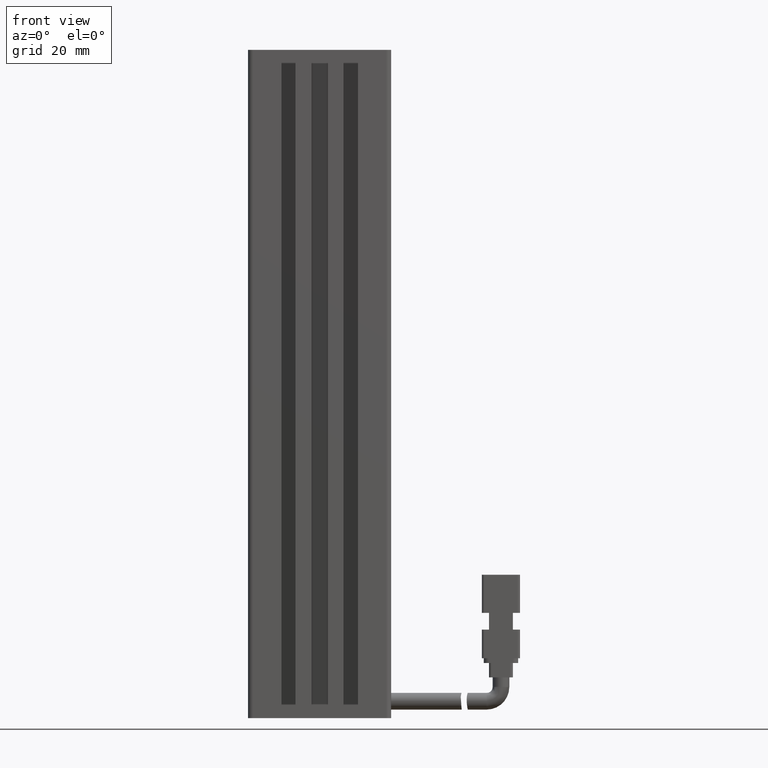
[diagram: clean part render]
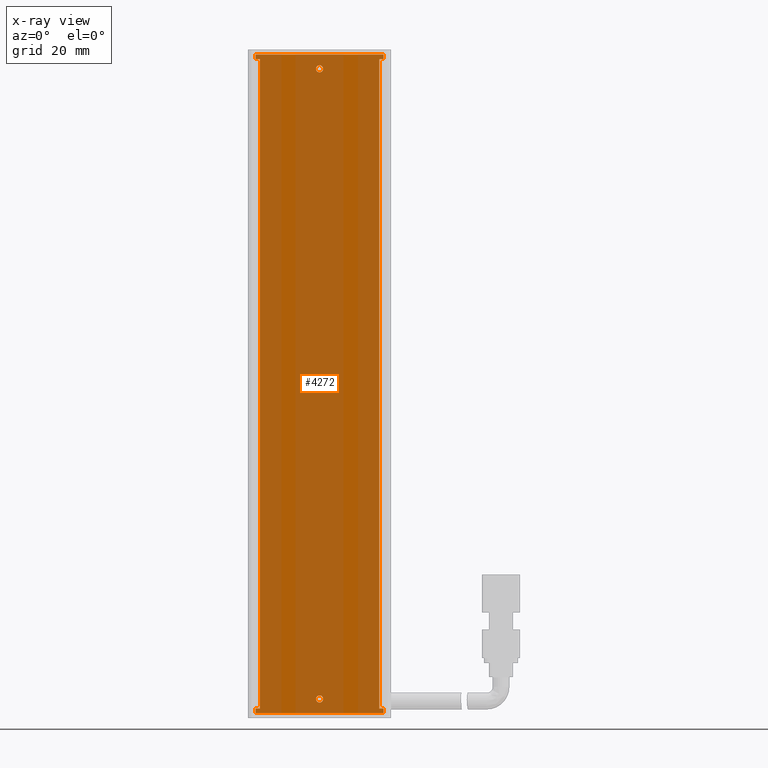
[diagram: x-ray — body ghosted, one internal face saturated and labeled with its STEP entity id]
A machine part, front view, then the same camera in x-ray: the body is ghosted and one INTERNAL B-rep face — a face not visible from any outside direction — is saturated and labeled: STEP entity #4272.
In plain terms, the highlighted planar face has unit normal (-0, 1, 0).
Its self-contained STEP definition (entity closure, byte-faithful):
#186 = DIRECTION ( 'NONE',  ( -0.0000000000000000000, -0.0000000000000000000, -1.000000000000000000 ) ) ;
#400 = LINE ( 'NONE', #32819, #7155 ) ;
#466 = LINE ( 'NONE', #29049, #15730 ) ;
#478 = CARTESIAN_POINT ( 'NONE',  ( 40.92537974683539700, 32.19594479660386100, -181.7499999999999400 ) ) ;
#881 = CARTESIAN_POINT ( 'NONE',  ( 27.52537974683540500, 32.19594479660386100, -45.99999999999992900 ) ) ;
#1186 = AXIS2_PLACEMENT_3D ( 'NONE', #28999, #11854, #31874 ) ;
#1208 = ORIENTED_EDGE ( 'NONE', *, *, #9903, .F. ) ;
#1719 = VERTEX_POINT ( 'NONE', #2754 ) ;
#1812 = LINE ( 'NONE', #20106, #31447 ) ;
#1877 = LINE ( 'NONE', #25681, #35567 ) ;
#2075 = CARTESIAN_POINT ( 'NONE',  ( 40.92537974683539700, 32.19594479660386100, -180.2499999999999400 ) ) ;
#2645 = VECTOR ( 'NONE', #20764, 1000.000000000000000 ) ;
#2672 = LINE ( 'NONE', #881, #22863 ) ;
#2754 = CARTESIAN_POINT ( 'NONE',  ( 40.92537974683541800, 32.19594479660386100, -48.24999999999992900 ) ) ;
#2755 = EDGE_CURVE ( 'NONE', #13309, #27087, #7143, .T. ) ;
#3033 = CARTESIAN_POINT ( 'NONE',  ( 54.32537974683541600, 32.19594479660386100, -45.99999999999992900 ) ) ;
#3152 = DIRECTION ( 'NONE',  ( 1.000000000000000000, -0.0000000000000000000, 0.0000000000000000000 ) ) ;
#3254 = EDGE_CURVE ( 'NONE', #16529, #20318, #36716, .T. ) ;
#4272 = ADVANCED_FACE ( 'NONE', ( #32406, #24769, #9542 ), #13325, .F. ) ;
#4477 = DIRECTION ( 'NONE',  ( 1.000000000000000000, 0.0000000000000000000, 0.0000000000000000000 ) ) ;
#5380 = CARTESIAN_POINT ( 'NONE',  ( 53.42537974683542500, 32.19594479660386100, -183.0000000000000000 ) ) ;
#5400 = CARTESIAN_POINT ( 'NONE',  ( 40.92537974683539700, 32.19594479660386100, -180.9999999999999400 ) ) ;
#5438 = ORIENTED_EDGE ( 'NONE', *, *, #12822, .T. ) ;
#5659 = LINE ( 'NONE', #25534, #20031 ) ;
#5731 = EDGE_CURVE ( 'NONE', #12591, #23479, #5659, .T. ) ;
#6385 = CARTESIAN_POINT ( 'NONE',  ( 54.32537974683541600, 32.19594479660386100, -183.9999999999999400 ) ) ;
#6885 = ORIENTED_EDGE ( 'NONE', *, *, #36721, .T. ) ;
#7025 = EDGE_CURVE ( 'NONE', #1719, #27499, #25292, .T. ) ;
#7143 = LINE ( 'NONE', #9213, #29092 ) ;
#7155 = VECTOR ( 'NONE', #29949, 1000.000000000000000 ) ;
#7843 = EDGE_CURVE ( 'NONE', #11116, #17968, #466, .T. ) ;
#8065 = CARTESIAN_POINT ( 'NONE',  ( 40.92537974683541800, 32.19594479660386100, -48.99999999999992900 ) ) ;
#8318 = DIRECTION ( 'NONE',  ( 0.0000000000000000000, 0.0000000000000000000, 1.000000000000000000 ) ) ;
#8719 = EDGE_CURVE ( 'NONE', #9076, #13903, #2672, .T. ) ;
#8800 = DIRECTION ( 'NONE',  ( -5.551115123125781500E-017, -0.0000000000000000000, -1.000000000000000000 ) ) ;
#8925 = EDGE_CURVE ( 'NONE', #13157, #11116, #27312, .T. ) ;
#9076 = VERTEX_POINT ( 'NONE', #10915 ) ;
#9213 = CARTESIAN_POINT ( 'NONE',  ( 54.32537974683541600, 32.19594479660386100, -45.99999999999992900 ) ) ;
#9260 = EDGE_LOOP ( 'NONE', ( #18302, #15233, #5438, #34395, #24704, #34833, #6885, #20009, #26504, #33871, #17207, #25379 ) ) ;
#9542 = FACE_BOUND ( 'NONE', #31387, .T. ) ;
#9594 = CARTESIAN_POINT ( 'NONE',  ( 40.92537974683541800, 32.19594479660386100, -48.99999999999992900 ) ) ;
#9903 = EDGE_CURVE ( 'NONE', #20318, #16529, #20866, .T. ) ;
#10722 = CARTESIAN_POINT ( 'NONE',  ( 40.92537974683541800, 32.19594479660386100, -49.74999999999993600 ) ) ;
#10799 = VECTOR ( 'NONE', #3152, 1000.000000000000000 ) ;
#10915 = CARTESIAN_POINT ( 'NONE',  ( 27.52537974683539800, 32.19594479660386100, -183.9999999999999400 ) ) ;
#10970 = DIRECTION ( 'NONE',  ( 0.0000000000000000000, 0.0000000000000000000, 1.000000000000000000 ) ) ;
#11078 = CARTESIAN_POINT ( 'NONE',  ( 53.42537974683542500, 32.19594479660386800, -47.00000000000000000 ) ) ;
#11116 = VERTEX_POINT ( 'NONE', #19212 ) ;
#11854 = DIRECTION ( 'NONE',  ( -0.0000000000000000000, -1.000000000000000000, -0.0000000000000000000 ) ) ;
#12082 = CARTESIAN_POINT ( 'NONE',  ( 40.92537974683542500, 32.19594479660386800, -183.0000000000000000 ) ) ;
#12484 = DIRECTION ( 'NONE',  ( 0.0000000000000000000, 0.0000000000000000000, 1.000000000000000000 ) ) ;
#12591 = VERTEX_POINT ( 'NONE', #14398 ) ;
#12703 = VERTEX_POINT ( 'NONE', #36956 ) ;
#12822 = EDGE_CURVE ( 'NONE', #15987, #12703, #33691, .T. ) ;
#13157 = VERTEX_POINT ( 'NONE', #5380 ) ;
#13309 = VERTEX_POINT ( 'NONE', #34761 ) ;
#13325 = PLANE ( 'NONE',  #37283 ) ;
#13903 = VERTEX_POINT ( 'NONE', #22768 ) ;
#14398 = CARTESIAN_POINT ( 'NONE',  ( 28.42537974683542100, 32.19594479660386100, -47.00000000000000000 ) ) ;
#14720 = CARTESIAN_POINT ( 'NONE',  ( 25.92537974683541800, 32.19594479660386100, -47.00000000000000000 ) ) ;
#14790 = AXIS2_PLACEMENT_3D ( 'NONE', #8065, #28096, #10970 ) ;
#15233 = ORIENTED_EDGE ( 'NONE', *, *, #37268, .F. ) ;
#15730 = VECTOR ( 'NONE', #28924, 1000.000000000000000 ) ;
#15987 = VERTEX_POINT ( 'NONE', #11078 ) ;
#16178 = AXIS2_PLACEMENT_3D ( 'NONE', #5400, #25480, #8318 ) ;
#16451 = DIRECTION ( 'NONE',  ( -0.0000000000000000000, 1.000000000000000000, 0.0000000000000000000 ) ) ;
#16529 = VERTEX_POINT ( 'NONE', #2075 ) ;
#17137 = VECTOR ( 'NONE', #8800, 1000.000000000000000 ) ;
#17207 = ORIENTED_EDGE ( 'NONE', *, *, #20384, .F. ) ;
#17782 = VECTOR ( 'NONE', #20690, 1000.000000000000000 ) ;
#17968 = VERTEX_POINT ( 'NONE', #30971 ) ;
#18050 = DIRECTION ( 'NONE',  ( 5.551115123125781500E-017, 0.0000000000000000000, 1.000000000000000000 ) ) ;
#18166 = CARTESIAN_POINT ( 'NONE',  ( 28.42537974683542100, 32.19594479660386800, -183.0000000000000000 ) ) ;
#18302 = ORIENTED_EDGE ( 'NONE', *, *, #8925, .F. ) ;
#18690 = LINE ( 'NONE', #12082, #17782 ) ;
#19212 = CARTESIAN_POINT ( 'NONE',  ( 54.32537974683541600, 32.19594479660386100, -183.0000000000000000 ) ) ;
#19635 = AXIS2_PLACEMENT_3D ( 'NONE', #9594, #29661, #12484 ) ;
#20009 = ORIENTED_EDGE ( 'NONE', *, *, #5731, .T. ) ;
#20031 = VECTOR ( 'NONE', #28399, 1000.000000000000000 ) ;
#20106 = CARTESIAN_POINT ( 'NONE',  ( 53.42537974683542500, 32.19594479660386800, -45.00000000000000000 ) ) ;
#20318 = VERTEX_POINT ( 'NONE', #478 ) ;
#20384 = EDGE_CURVE ( 'NONE', #17968, #9076, #33182, .T. ) ;
#20495 = EDGE_CURVE ( 'NONE', #33423, #13309, #400, .T. ) ;
#20690 = DIRECTION ( 'NONE',  ( -1.000000000000000000, -0.0000000000000000000, 0.0000000000000000000 ) ) ;
#20764 = DIRECTION ( 'NONE',  ( -1.000000000000000000, -0.0000000000000000000, 5.551115123125781500E-017 ) ) ;
#20866 = CIRCLE ( 'NONE', #1186, 0.7500000000000006700 ) ;
#21492 = EDGE_CURVE ( 'NONE', #23479, #13903, #18690, .T. ) ;
#21678 = ORIENTED_EDGE ( 'NONE', *, *, #24122, .F. ) ;
#22056 = ORIENTED_EDGE ( 'NONE', *, *, #3254, .F. ) ;
#22416 = CARTESIAN_POINT ( 'NONE',  ( 54.32537974683541600, 32.19594479660386100, -45.99999999999992900 ) ) ;
#22768 = CARTESIAN_POINT ( 'NONE',  ( 27.52537974683539800, 32.19594479660386800, -183.0000000000000000 ) ) ;
#22863 = VECTOR ( 'NONE', #18050, 1000.000000000000000 ) ;
#23479 = VERTEX_POINT ( 'NONE', #18166 ) ;
#24122 = EDGE_CURVE ( 'NONE', #27499, #1719, #24952, .T. ) ;
#24704 = ORIENTED_EDGE ( 'NONE', *, *, #2755, .F. ) ;
#24761 = LINE ( 'NONE', #3033, #17137 ) ;
#24769 = FACE_BOUND ( 'NONE', #33103, .T. ) ;
#24952 = CIRCLE ( 'NONE', #19635, 0.7500000000000006700 ) ;
#25292 = CIRCLE ( 'NONE', #14790, 0.7500000000000006700 ) ;
#25379 = ORIENTED_EDGE ( 'NONE', *, *, #7843, .F. ) ;
#25480 = DIRECTION ( 'NONE',  ( -0.0000000000000000000, -1.000000000000000000, -0.0000000000000000000 ) ) ;
#25534 = CARTESIAN_POINT ( 'NONE',  ( 28.42537974683542100, 32.19594479660386800, -45.00000000000000000 ) ) ;
#25681 = CARTESIAN_POINT ( 'NONE',  ( 40.92537974683542500, 32.19594479660386800, -47.00000000000000000 ) ) ;
#26504 = ORIENTED_EDGE ( 'NONE', *, *, #21492, .T. ) ;
#27087 = VERTEX_POINT ( 'NONE', #22416 ) ;
#27312 = LINE ( 'NONE', #33221, #34102 ) ;
#27499 = VERTEX_POINT ( 'NONE', #10722 ) ;
#28096 = DIRECTION ( 'NONE',  ( -0.0000000000000000000, -1.000000000000000000, -0.0000000000000000000 ) ) ;
#28399 = DIRECTION ( 'NONE',  ( -0.0000000000000000000, -0.0000000000000000000, -1.000000000000000000 ) ) ;
#28924 = DIRECTION ( 'NONE',  ( -5.551115123125781500E-017, -0.0000000000000000000, -1.000000000000000000 ) ) ;
#28999 = CARTESIAN_POINT ( 'NONE',  ( 40.92537974683539700, 32.19594479660386100, -180.9999999999999400 ) ) ;
#29049 = CARTESIAN_POINT ( 'NONE',  ( 54.32537974683541600, 32.19594479660386100, -45.99999999999992900 ) ) ;
#29092 = VECTOR ( 'NONE', #29273, 1000.000000000000000 ) ;
#29273 = DIRECTION ( 'NONE',  ( 1.000000000000000000, 0.0000000000000000000, -5.551115123125781500E-017 ) ) ;
#29661 = DIRECTION ( 'NONE',  ( -0.0000000000000000000, -1.000000000000000000, -0.0000000000000000000 ) ) ;
#29729 = CARTESIAN_POINT ( 'NONE',  ( 27.52537974683539800, 32.19594479660386800, -47.00000000000000000 ) ) ;
#29949 = DIRECTION ( 'NONE',  ( 5.551115123125781500E-017, 0.0000000000000000000, 1.000000000000000000 ) ) ;
#30662 = ORIENTED_EDGE ( 'NONE', *, *, #7025, .F. ) ;
#30971 = CARTESIAN_POINT ( 'NONE',  ( 54.32537974683540900, 32.19594479660386100, -183.9999999999999400 ) ) ;
#31387 = EDGE_LOOP ( 'NONE', ( #22056, #1208 ) ) ;
#31447 = VECTOR ( 'NONE', #186, 1000.000000000000000 ) ;
#31874 = DIRECTION ( 'NONE',  ( 0.0000000000000000000, 0.0000000000000000000, 1.000000000000000000 ) ) ;
#32406 = FACE_OUTER_BOUND ( 'NONE', #9260, .T. ) ;
#32819 = CARTESIAN_POINT ( 'NONE',  ( 27.52537974683540500, 32.19594479660386100, -45.99999999999992900 ) ) ;
#33103 = EDGE_LOOP ( 'NONE', ( #30662, #21678 ) ) ;
#33182 = LINE ( 'NONE', #6385, #2645 ) ;
#33221 = CARTESIAN_POINT ( 'NONE',  ( 40.92537974683542500, 32.19594479660386800, -183.0000000000000000 ) ) ;
#33258 = EDGE_CURVE ( 'NONE', #27087, #12703, #24761, .T. ) ;
#33423 = VERTEX_POINT ( 'NONE', #29729 ) ;
#33674 = CARTESIAN_POINT ( 'NONE',  ( 54.32537974683541600, 32.19594479660386100, -45.99999999999992900 ) ) ;
#33691 = LINE ( 'NONE', #14720, #10799 ) ;
#33871 = ORIENTED_EDGE ( 'NONE', *, *, #8719, .F. ) ;
#34102 = VECTOR ( 'NONE', #4477, 1000.000000000000000 ) ;
#34232 = DIRECTION ( 'NONE',  ( 1.000000000000000000, 0.0000000000000000000, -0.0000000000000000000 ) ) ;
#34395 = ORIENTED_EDGE ( 'NONE', *, *, #33258, .F. ) ;
#34761 = CARTESIAN_POINT ( 'NONE',  ( 27.52537974683541900, 32.19594479660386100, -45.99999999999992900 ) ) ;
#34833 = ORIENTED_EDGE ( 'NONE', *, *, #20495, .F. ) ;
#35567 = VECTOR ( 'NONE', #34232, 1000.000000000000000 ) ;
#36568 = DIRECTION ( 'NONE',  ( 5.551115123125781500E-017, 0.0000000000000000000, 1.000000000000000000 ) ) ;
#36716 = CIRCLE ( 'NONE', #16178, 0.7500000000000006700 ) ;
#36721 = EDGE_CURVE ( 'NONE', #33423, #12591, #1877, .T. ) ;
#36956 = CARTESIAN_POINT ( 'NONE',  ( 54.32537974683541600, 32.19594479660386100, -47.00000000000000000 ) ) ;
#37268 = EDGE_CURVE ( 'NONE', #15987, #13157, #1812, .T. ) ;
#37283 = AXIS2_PLACEMENT_3D ( 'NONE', #33674, #16451, #36568 ) ;